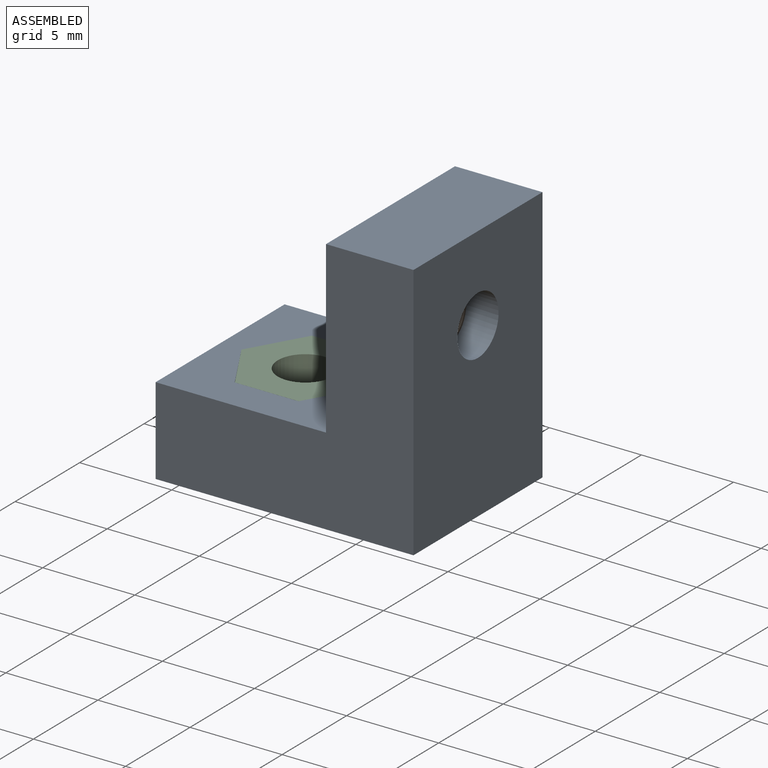
[diagram: assembled view]
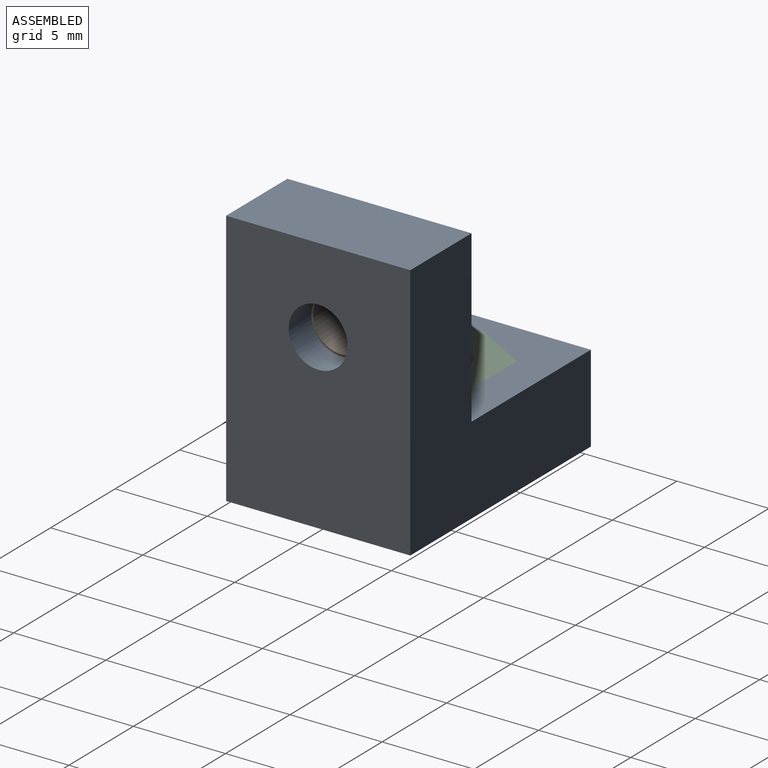
[diagram: assembled view, second angle]
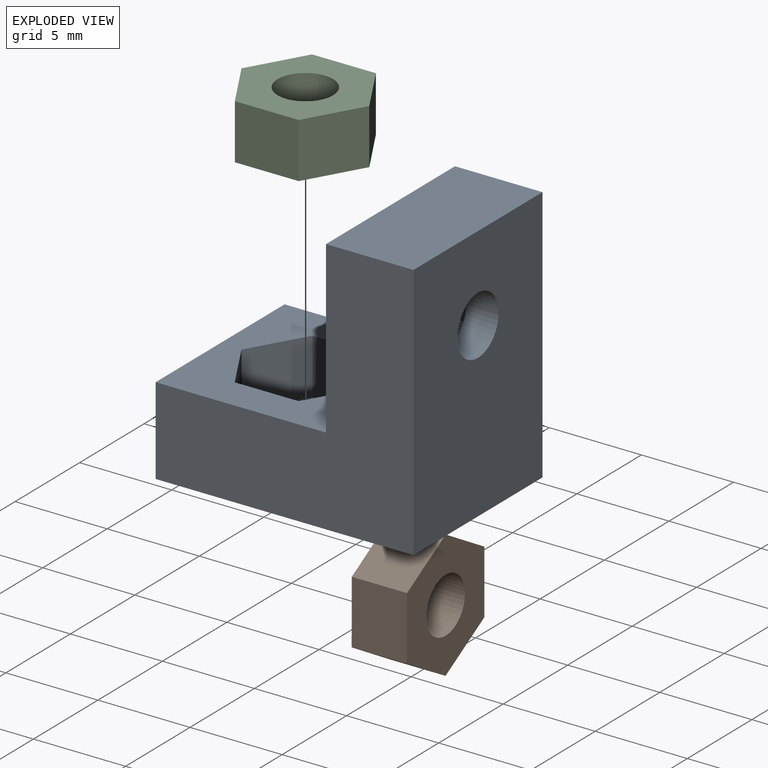
[diagram: exploded view]
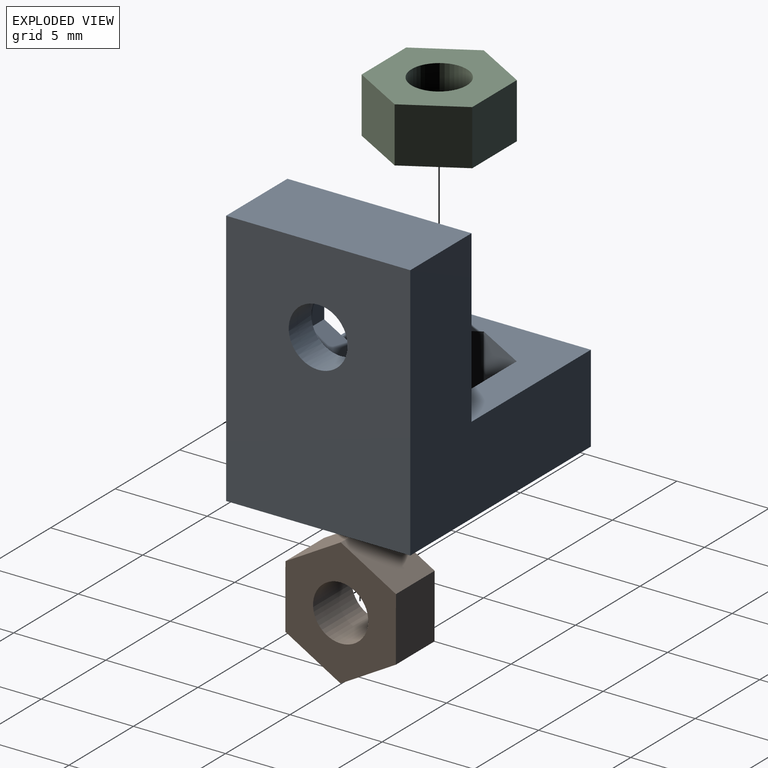
[diagram: exploded view, second angle]
ASSEMBLY  parts=3 mates=2
PART A: 24 faces, bbox 14x10x14 mm
  f0: plane 10x9.25mm, normal (0,0,1), area 61.3mm2, adj f1,f2,f6,f7,f16,f17,f18,f19
  f1: plane 10x9.25mm, normal (-1,0,0), area 61.3mm2, adj f0,f5,f6,f7,f8,f9,f10,f11
  f2: plane 10x4.75mm, normal (-1,0,0), area 47.5mm2, adj f0,f3,f6,f7
  f3: plane 14x10mm, normal (0,0,-1), area 132mm2, adj f2,f4,f6,f7,f23
  f4: plane 14x10mm, normal (1,0,0), area 132mm2, adj f3,f5,f6,f7,f15
  f5: plane 10x4.75mm, normal (0,0,1), area 47.5mm2, adj f1,f4,f6,f7
  f6: plane 14x14mm, normal (0,-1,0), area 110.4mm2, adj f0,f1,f2,f3,f4,f5
  f7: plane 14x14mm, normal (0,1,0), area 110.4mm2, adj f0,f1,f2,f3,f4,f5
  f8: plane 3x3mm, normal (0,-0.5,0.87), area 10.4mm2, adj f1,f9,f13,f14
  f9: plane 3x3mm, normal (0,0.5,0.87), area 10.4mm2, adj f1,f8,f10,f14
  f10: plane 3.46x3mm, normal (0,1,0), area 10.4mm2, adj f1,f9,f11,f14
  f11: plane 3x3mm, normal (0,0.5,-0.87), area 10.4mm2, adj f1,f10,f12,f14
  f12: plane 3x3mm, normal (0,-0.5,-0.87), area 10.4mm2, adj f1,f11,f13,f14
  f13: plane 3.46x3mm, normal (0,-1,0), area 10.4mm2, adj f1,f8,f12,f14
  f14: plane 6.93x6mm, normal (-1,0,0), area 23.1mm2, adj f8,f9,f10,f11,f12,f13,f15
  f15: cylinder r=1.6mm len=3.2mm, axis (-1,0,0), area 17.6mm2, adj f4,f14
  f16: plane 3x3mm, normal (-0.87,0.5,0), area 10.4mm2, adj f0,f17,f21,f22
  f17: plane 3x3mm, normal (-0.87,-0.5,0), area 10.4mm2, adj f0,f16,f18,f22
  f18: plane 3.46x3mm, normal (0,-1,0), area 10.4mm2, adj f0,f17,f19,f22
  f19: plane 3x3mm, normal (0.87,-0.5,0), area 10.4mm2, adj f0,f18,f20,f22
  f20: plane 3x3mm, normal (0.87,0.5,0), area 10.4mm2, adj f0,f19,f21,f22
  f21: plane 3.46x3mm, normal (0,1,0), area 10.4mm2, adj f0,f16,f20,f22
  f22: plane 6.93x6mm, normal (0,0,1), area 23.1mm2, adj f16,f17,f18,f19,f20,f21,f23
  f23: cylinder r=1.6mm len=3.2mm, axis (0,0,1), area 17.6mm2, adj f3,f22
PART B: 9 faces, bbox 6.9x6x3 mm
  f0: plane 3.46x3mm, normal (0,1,0), area 10.4mm2, adj f1,f6,f7,f8
  f1: plane 3x3mm, normal (-0.87,0.5,0), area 10.4mm2, adj f0,f2,f7,f8
  f2: plane 3x3mm, normal (-0.87,-0.5,0), area 10.4mm2, adj f1,f3,f7,f8
  f3: plane 3.46x3mm, normal (0,-1,0), area 10.4mm2, adj f2,f4,f7,f8
  f4: plane 3x3mm, normal (0.87,-0.5,0), area 10.4mm2, adj f3,f6,f7,f8
  f5: cylinder r=1.5mm len=3mm, axis (0,0,-1), area 28.3mm2, adj f7,f8
  f6: plane 3x3mm, normal (0.87,0.5,0), area 10.4mm2, adj f0,f4,f7,f8
  f7: plane 6.93x6.01mm, normal (0,0,1), area 24.1mm2, adj f0,f1,f2,f3,f4,f5,f6
  f8: plane 6.93x6.01mm, normal (0,0,-1), area 24.1mm2, adj f0,f1,f2,f3,f4,f5,f6
PART C: same geometry as B
PLACE A t=(-1.64,5.39,1.06)mm
PLACE B rot(axis=(0,-1,0),90deg) t=(-3.39,0.38,10.44)mm
PLACE C t=(-11.01,0.39,2.81)mm
MATE fastened C.f8 <-> A.f22  axis (0,0,-1) through (-14.48,0.39,2.81)mm
MATE fastened B.f8 <-> A.f14  axis (1,0,0) through (-3.39,0.39,13.9)mm
